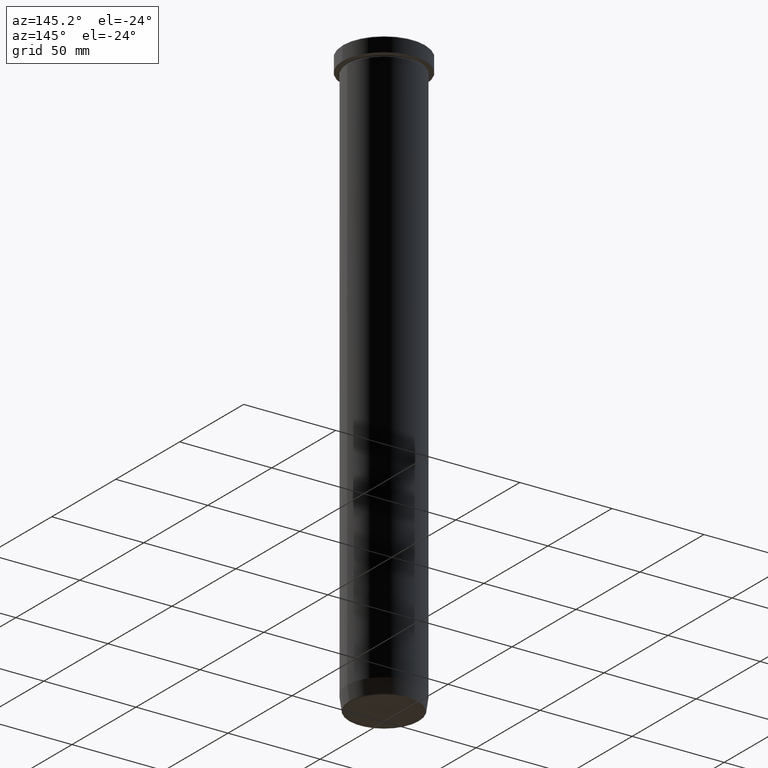
[diagram: clean part render]
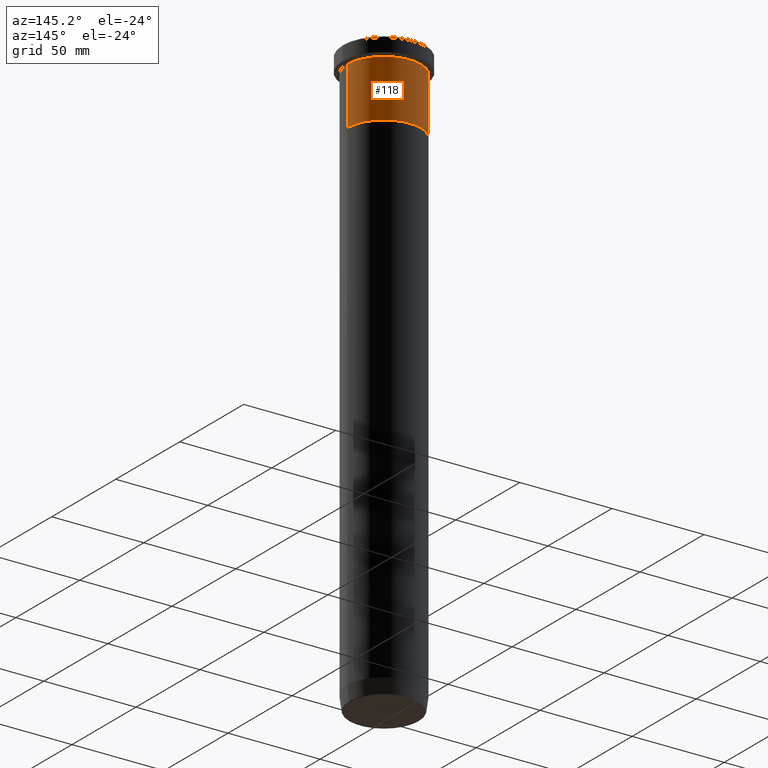
[diagram: same view with one face highlighted and labeled with its STEP entity id]
A machine part, auxiliary view. The second image highlights one B-rep face of the part: STEP entity #118.
In plain terms, the highlighted cylindrical surface (partial cylindrical patch) has radius 20 mm, axis along (-0, -0, 1).
Its self-contained STEP definition (entity closure, byte-faithful):
#39 = DIRECTION ( 'NONE',  ( -0.000000000000000000, -0.000000000000000000, 1.000000000000000000 ) ) ;
#71 = VERTEX_POINT ( 'NONE', #171 ) ;
#93 = CARTESIAN_POINT ( 'NONE',  ( -20.00000000000000000, 2.449293598294706513E-15, -8.999999999999998224 ) ) ;
#118 = ADVANCED_FACE ( 'NONE', ( #207 ), #339, .T. ) ;
#147 = EDGE_CURVE ( 'NONE', #358, #388, #518, .T. ) ;
#148 = VECTOR ( 'NONE', #307, 1000.000000000000000 ) ;
#162 = AXIS2_PLACEMENT_3D ( 'NONE', #334, #39, #238 ) ;
#164 = ORIENTED_EDGE ( 'NONE', *, *, #236, .F. ) ;
#171 = CARTESIAN_POINT ( 'NONE',  ( 20.00000000000000000, 0.000000000000000000, -8.999999999999998224 ) ) ;
#174 = AXIS2_PLACEMENT_3D ( 'NONE', #179, #432, #365 ) ;
#175 = CIRCLE ( 'NONE', #162, 20.00000000000000000 ) ;
#179 = CARTESIAN_POINT ( 'NONE',  ( 0.000000000000000000, 0.000000000000000000, -8.999999999999998224 ) ) ;
#193 = CARTESIAN_POINT ( 'NONE',  ( -20.00000000000000000, 2.449293598294706513E-15, 0.000000000000000000 ) ) ;
#206 = EDGE_LOOP ( 'NONE', ( #573, #465, #164, #582 ) ) ;
#207 = FACE_OUTER_BOUND ( 'NONE', #206, .T. ) ;
#236 = EDGE_CURVE ( 'NONE', #71, #388, #330, .T. ) ;
#238 = DIRECTION ( 'NONE',  ( 1.000000000000000000, 0.000000000000000000, 0.000000000000000000 ) ) ;
#242 = LINE ( 'NONE', #559, #279 ) ;
#250 = DIRECTION ( 'NONE',  ( 1.000000000000000000, 0.000000000000000000, 0.000000000000000000 ) ) ;
#263 = VERTEX_POINT ( 'NONE', #478 ) ;
#279 = VECTOR ( 'NONE', #453, 1000.000000000000000 ) ;
#307 = DIRECTION ( 'NONE',  ( -0.000000000000000000, -0.000000000000000000, 1.000000000000000000 ) ) ;
#330 = CIRCLE ( 'NONE', #174, 20.00000000000000000 ) ;
#334 = CARTESIAN_POINT ( 'NONE',  ( 0.000000000000000000, 0.000000000000000000, -40.00000000000000000 ) ) ;
#339 = CYLINDRICAL_SURFACE ( 'NONE', #528, 20.00000000000000000 ) ;
#358 = VERTEX_POINT ( 'NONE', #525 ) ;
#365 = DIRECTION ( 'NONE',  ( 1.000000000000000000, 0.000000000000000000, 0.000000000000000000 ) ) ;
#388 = VERTEX_POINT ( 'NONE', #93 ) ;
#429 = CARTESIAN_POINT ( 'NONE',  ( 0.000000000000000000, 0.000000000000000000, 0.000000000000000000 ) ) ;
#432 = DIRECTION ( 'NONE',  ( -0.000000000000000000, -0.000000000000000000, 1.000000000000000000 ) ) ;
#453 = DIRECTION ( 'NONE',  ( -0.000000000000000000, -0.000000000000000000, 1.000000000000000000 ) ) ;
#465 = ORIENTED_EDGE ( 'NONE', *, *, #147, .T. ) ;
#476 = DIRECTION ( 'NONE',  ( -0.000000000000000000, -0.000000000000000000, 1.000000000000000000 ) ) ;
#478 = CARTESIAN_POINT ( 'NONE',  ( 20.00000000000000000, 0.000000000000000000, -40.00000000000000000 ) ) ;
#490 = EDGE_CURVE ( 'NONE', #263, #71, #242, .T. ) ;
#518 = LINE ( 'NONE', #193, #148 ) ;
#524 = EDGE_CURVE ( 'NONE', #263, #358, #175, .T. ) ;
#525 = CARTESIAN_POINT ( 'NONE',  ( -20.00000000000000000, 2.449293598294706513E-15, -40.00000000000000000 ) ) ;
#528 = AXIS2_PLACEMENT_3D ( 'NONE', #429, #476, #250 ) ;
#559 = CARTESIAN_POINT ( 'NONE',  ( 20.00000000000000000, 0.000000000000000000, 0.000000000000000000 ) ) ;
#573 = ORIENTED_EDGE ( 'NONE', *, *, #524, .T. ) ;
#582 = ORIENTED_EDGE ( 'NONE', *, *, #490, .F. ) ;